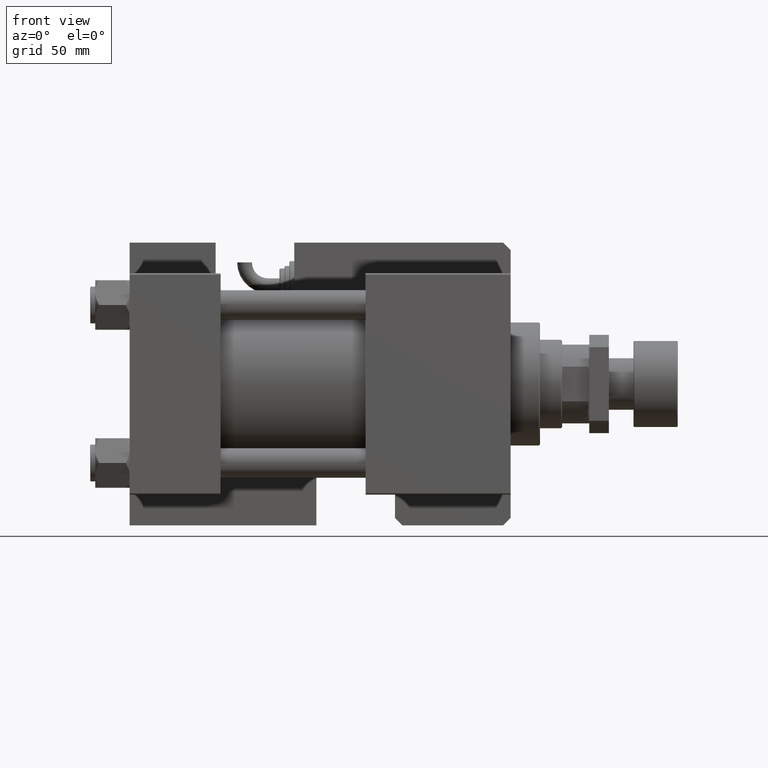
[diagram: clean part render]
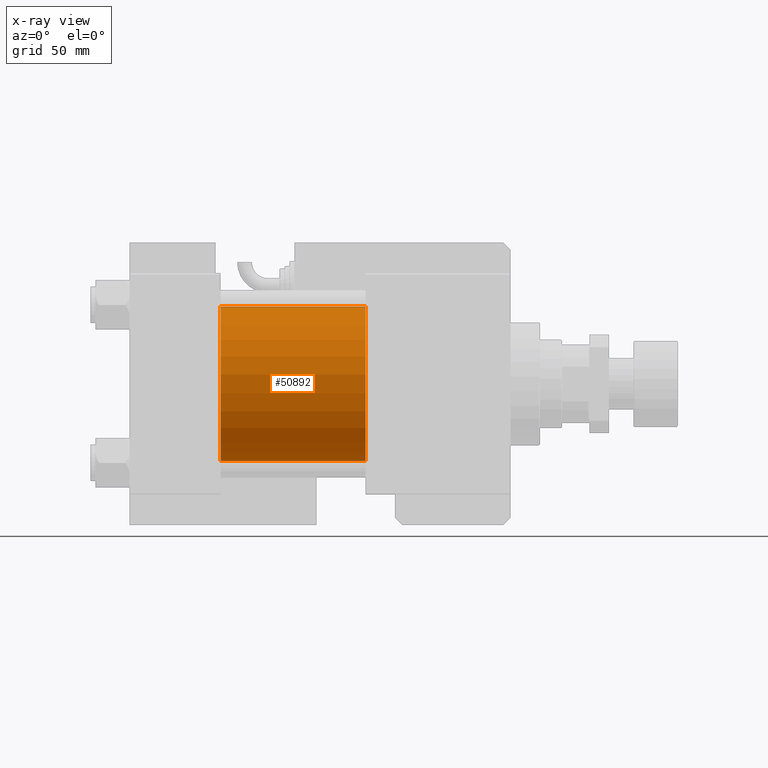
[diagram: x-ray — body ghosted, one internal face saturated and labeled with its STEP entity id]
A machine part, front view, then the same camera in x-ray: the body is ghosted and one INTERNAL B-rep face — a face not visible from any outside direction — is saturated and labeled: STEP entity #50892.
In plain terms, the highlighted cylindrical surface (partial cylindrical patch) has radius 31.5 mm, axis along (-1, -0, -0).
Its self-contained STEP definition (entity closure, byte-faithful):
#200 = AXIS2_PLACEMENT_3D ( 'NONE', #51948, #4615, #44248 ) ;
#1436 = VERTEX_POINT ( 'NONE', #44594 ) ;
#2131 = DIRECTION ( 'NONE',  ( -1.000000000000000000, -0.000000000000000000, -0.000000000000000000 ) ) ;
#2281 = CARTESIAN_POINT ( 'NONE',  ( 37.00000000000000000, -2.602085213965210642E-15, 31.50000000000000000 ) ) ;
#3885 = EDGE_CURVE ( 'NONE', #43777, #1436, #6256, .T. ) ;
#4053 = CYLINDRICAL_SURFACE ( 'NONE', #200, 31.50000000000000000 ) ;
#4615 = DIRECTION ( 'NONE',  ( -1.000000000000000000, -0.000000000000000000, -0.000000000000000000 ) ) ;
#5692 = DIRECTION ( 'NONE',  ( -1.000000000000000000, -0.000000000000000000, -0.000000000000000000 ) ) ;
#5733 = EDGE_CURVE ( 'NONE', #41393, #21759, #37199, .T. ) ;
#6256 = LINE ( 'NONE', #32215, #44783 ) ;
#10034 = CARTESIAN_POINT ( 'NONE',  ( 96.00000000000000000, -2.602085213965210642E-15, 0.000000000000000000 ) ) ;
#11244 = CARTESIAN_POINT ( 'NONE',  ( 96.00000000000000000, -2.602085213965210642E-15, 31.50000000000000000 ) ) ;
#13997 = AXIS2_PLACEMENT_3D ( 'NONE', #10034, #26870, #44835 ) ;
#15267 = EDGE_LOOP ( 'NONE', ( #34414, #27902, #36816, #51379 ) ) ;
#21075 = AXIS2_PLACEMENT_3D ( 'NONE', #44790, #32252, #53623 ) ;
#21759 = VERTEX_POINT ( 'NONE', #2281 ) ;
#24008 = CIRCLE ( 'NONE', #13997, 31.50000000000000000 ) ;
#26002 = FACE_OUTER_BOUND ( 'NONE', #15267, .T. ) ;
#26870 = DIRECTION ( 'NONE',  ( 1.000000000000000000, 0.000000000000000000, 0.000000000000000000 ) ) ;
#27902 = ORIENTED_EDGE ( 'NONE', *, *, #3885, .T. ) ;
#32215 = CARTESIAN_POINT ( 'NONE',  ( 96.00000000000000000, 1.255552203348951850E-15, -31.50000000000000000 ) ) ;
#32252 = DIRECTION ( 'NONE',  ( 1.000000000000000000, 0.000000000000000000, 0.000000000000000000 ) ) ;
#34414 = ORIENTED_EDGE ( 'NONE', *, *, #54511, .T. ) ;
#36816 = ORIENTED_EDGE ( 'NONE', *, *, #46288, .F. ) ;
#37199 = LINE ( 'NONE', #11244, #42152 ) ;
#41393 = VERTEX_POINT ( 'NONE', #50312 ) ;
#42152 = VECTOR ( 'NONE', #2131, 1000.000000000000000 ) ;
#43777 = VERTEX_POINT ( 'NONE', #48797 ) ;
#44248 = DIRECTION ( 'NONE',  ( 0.000000000000000000, 0.000000000000000000, 1.000000000000000000 ) ) ;
#44594 = CARTESIAN_POINT ( 'NONE',  ( 37.00000000000000000, 1.255552203348951850E-15, -31.50000000000000000 ) ) ;
#44783 = VECTOR ( 'NONE', #5692, 1000.000000000000000 ) ;
#44790 = CARTESIAN_POINT ( 'NONE',  ( 37.00000000000000000, -2.602085213965210642E-15, 0.000000000000000000 ) ) ;
#44835 = DIRECTION ( 'NONE',  ( 0.000000000000000000, 0.000000000000000000, -1.000000000000000000 ) ) ;
#45678 = CIRCLE ( 'NONE', #21075, 31.50000000000000000 ) ;
#46288 = EDGE_CURVE ( 'NONE', #21759, #1436, #45678, .T. ) ;
#48797 = CARTESIAN_POINT ( 'NONE',  ( 96.00000000000000000, 1.255552203348951850E-15, -31.50000000000000000 ) ) ;
#50312 = CARTESIAN_POINT ( 'NONE',  ( 96.00000000000000000, -2.602085213965210642E-15, 31.50000000000000000 ) ) ;
#50892 = ADVANCED_FACE ( 'NONE', ( #26002 ), #4053, .F. ) ;
#51379 = ORIENTED_EDGE ( 'NONE', *, *, #5733, .F. ) ;
#51948 = CARTESIAN_POINT ( 'NONE',  ( 96.00000000000000000, -2.602085213965210642E-15, 0.000000000000000000 ) ) ;
#53623 = DIRECTION ( 'NONE',  ( 0.000000000000000000, 0.000000000000000000, -1.000000000000000000 ) ) ;
#54511 = EDGE_CURVE ( 'NONE', #41393, #43777, #24008, .T. ) ;